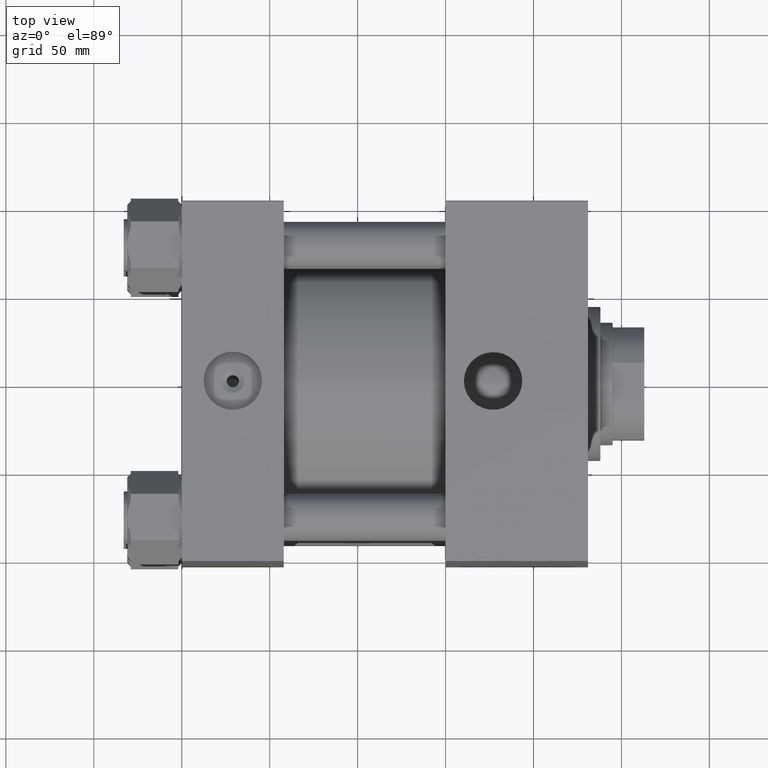
[diagram: clean part render]
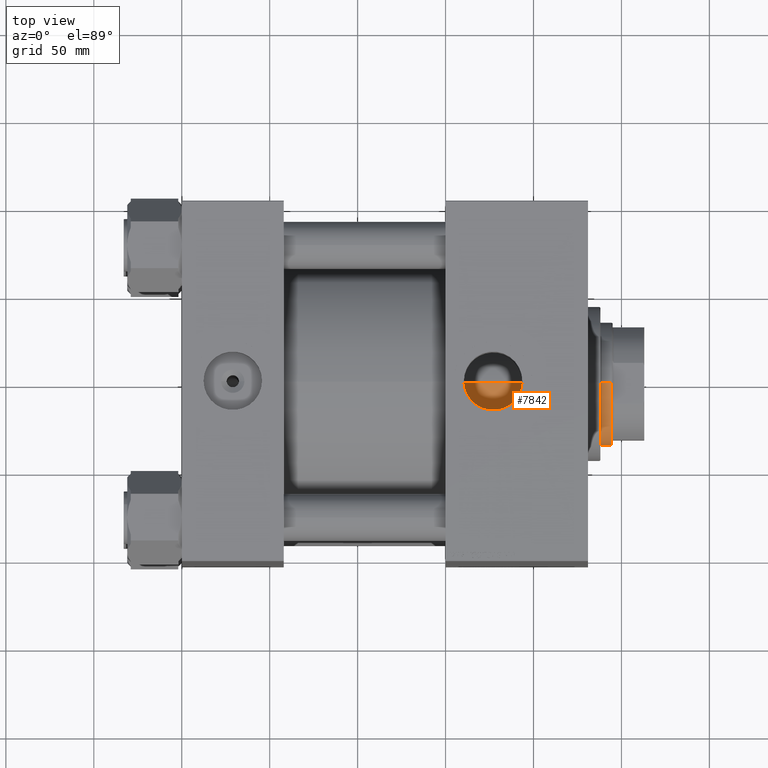
[diagram: same view with one face highlighted and labeled with its STEP entity id]
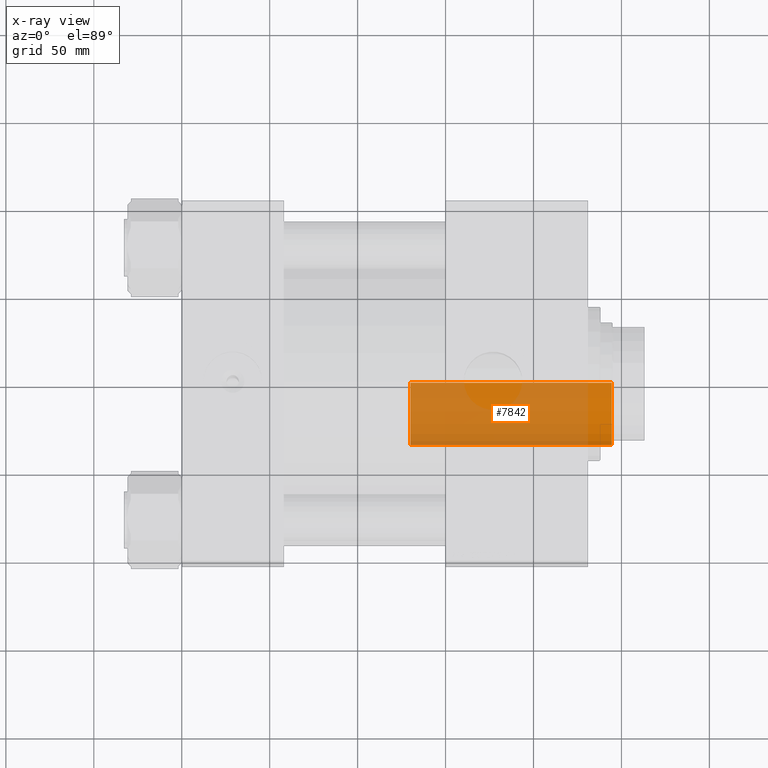
[diagram: x-ray of the same camera — body ghosted, the highlighted face saturated]
A machine part, top view. The second image highlights one B-rep face of the part: STEP entity #7842.
The next image is the same camera in x-ray: the body ghosted, the highlighted face saturated — about 78% of this face is hidden behind the body in this view.
In plain terms, the highlighted cylindrical surface (partial cylindrical patch) has radius 35 mm, axis along (-1, 0, 0).
Its self-contained STEP definition (entity closure, byte-faithful):
#1007 = ORIENTED_EDGE ( 'NONE', *, *, #27903, .T. ) ;
#1034 = VECTOR ( 'NONE', #4548, 1000.000000000000000 ) ;
#1425 = VERTEX_POINT ( 'NONE', #49460 ) ;
#2318 = CARTESIAN_POINT ( 'NONE',  ( 0.000000000000000000, 0.000000000000000000, 187.0000000000000000 ) ) ;
#2425 = CARTESIAN_POINT ( 'NONE',  ( 35.00000000000000711, 4.286263797015737285E-15, 186.5000000000000284 ) ) ;
#4548 = DIRECTION ( 'NONE',  ( -0.000000000000000000, -0.000000000000000000, -1.000000000000000000 ) ) ;
#4982 = CIRCLE ( 'NONE', #45137, 35.00000000000000711 ) ;
#6420 = DIRECTION ( 'NONE',  ( -0.000000000000000000, -0.000000000000000000, -1.000000000000000000 ) ) ;
#6587 = ORIENTED_EDGE ( 'NONE', *, *, #50154, .T. ) ;
#6961 = EDGE_LOOP ( 'NONE', ( #30445, #6587, #1007, #10786 ) ) ;
#7842 = ADVANCED_FACE ( 'NONE', ( #41567 ), #50019, .T. ) ;
#9260 = CARTESIAN_POINT ( 'NONE',  ( 0.000000000000000000, 0.000000000000000000, 186.5000000000000284 ) ) ;
#10786 = ORIENTED_EDGE ( 'NONE', *, *, #23182, .F. ) ;
#13764 = VERTEX_POINT ( 'NONE', #2425 ) ;
#16605 = CIRCLE ( 'NONE', #40336, 35.00000000000000711 ) ;
#17915 = CARTESIAN_POINT ( 'NONE',  ( -35.00000000000000711, 0.000000000000000000, 187.0000000000000000 ) ) ;
#17965 = DIRECTION ( 'NONE',  ( -1.000000000000000000, 0.000000000000000000, 0.000000000000000000 ) ) ;
#18439 = VERTEX_POINT ( 'NONE', #20897 ) ;
#18953 = CARTESIAN_POINT ( 'NONE',  ( 35.00000000000000711, 4.286263797015737285E-15, 72.00000000000000000 ) ) ;
#19714 = VECTOR ( 'NONE', #45616, 1000.000000000000000 ) ;
#20897 = CARTESIAN_POINT ( 'NONE',  ( -35.00000000000000711, 0.000000000000000000, 72.00000000000000000 ) ) ;
#22792 = AXIS2_PLACEMENT_3D ( 'NONE', #2318, #6420, #17965 ) ;
#22834 = DIRECTION ( 'NONE',  ( 1.000000000000000000, 0.000000000000000000, 0.000000000000000000 ) ) ;
#23182 = EDGE_CURVE ( 'NONE', #1425, #18439, #48452, .T. ) ;
#24905 = DIRECTION ( 'NONE',  ( 1.000000000000000000, 0.000000000000000000, 0.000000000000000000 ) ) ;
#27892 = LINE ( 'NONE', #38682, #1034 ) ;
#27903 = EDGE_CURVE ( 'NONE', #48568, #18439, #16605, .T. ) ;
#28763 = DIRECTION ( 'NONE',  ( 0.000000000000000000, 0.000000000000000000, -1.000000000000000000 ) ) ;
#30445 = ORIENTED_EDGE ( 'NONE', *, *, #45288, .T. ) ;
#30530 = DIRECTION ( 'NONE',  ( 0.000000000000000000, 0.000000000000000000, 1.000000000000000000 ) ) ;
#30778 = CARTESIAN_POINT ( 'NONE',  ( 0.000000000000000000, 0.000000000000000000, 72.00000000000000000 ) ) ;
#38682 = CARTESIAN_POINT ( 'NONE',  ( 35.00000000000000711, 4.286263797015737285E-15, 187.0000000000000000 ) ) ;
#40336 = AXIS2_PLACEMENT_3D ( 'NONE', #30778, #30530, #22834 ) ;
#41567 = FACE_OUTER_BOUND ( 'NONE', #6961, .T. ) ;
#45137 = AXIS2_PLACEMENT_3D ( 'NONE', #9260, #28763, #24905 ) ;
#45288 = EDGE_CURVE ( 'NONE', #1425, #13764, #4982, .T. ) ;
#45616 = DIRECTION ( 'NONE',  ( -0.000000000000000000, -0.000000000000000000, -1.000000000000000000 ) ) ;
#48452 = LINE ( 'NONE', #17915, #19714 ) ;
#48568 = VERTEX_POINT ( 'NONE', #18953 ) ;
#49460 = CARTESIAN_POINT ( 'NONE',  ( -35.00000000000000711, 0.000000000000000000, 186.5000000000000284 ) ) ;
#50019 = CYLINDRICAL_SURFACE ( 'NONE', #22792, 35.00000000000000711 ) ;
#50154 = EDGE_CURVE ( 'NONE', #13764, #48568, #27892, .T. ) ;